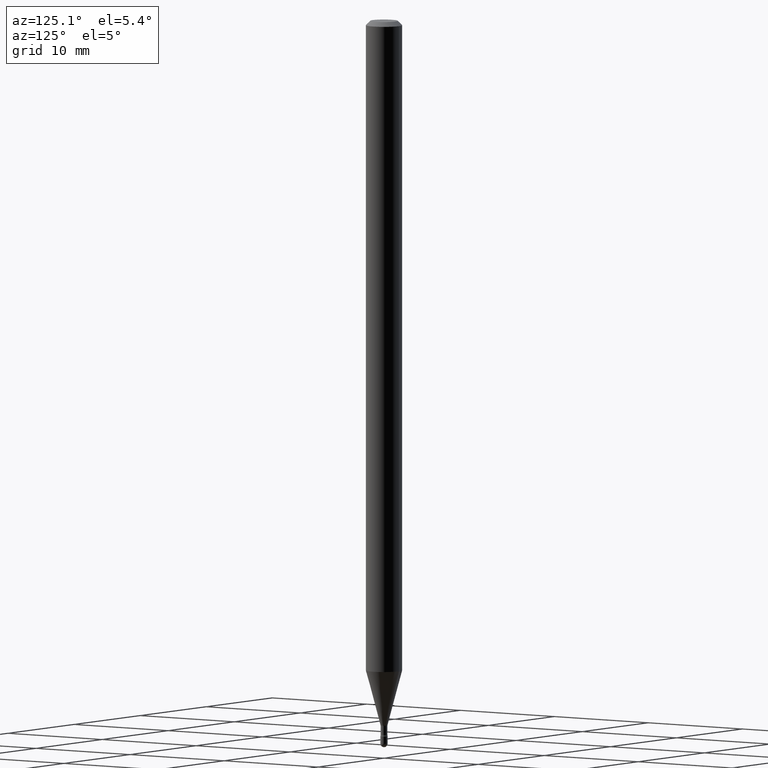
[diagram: clean part render]
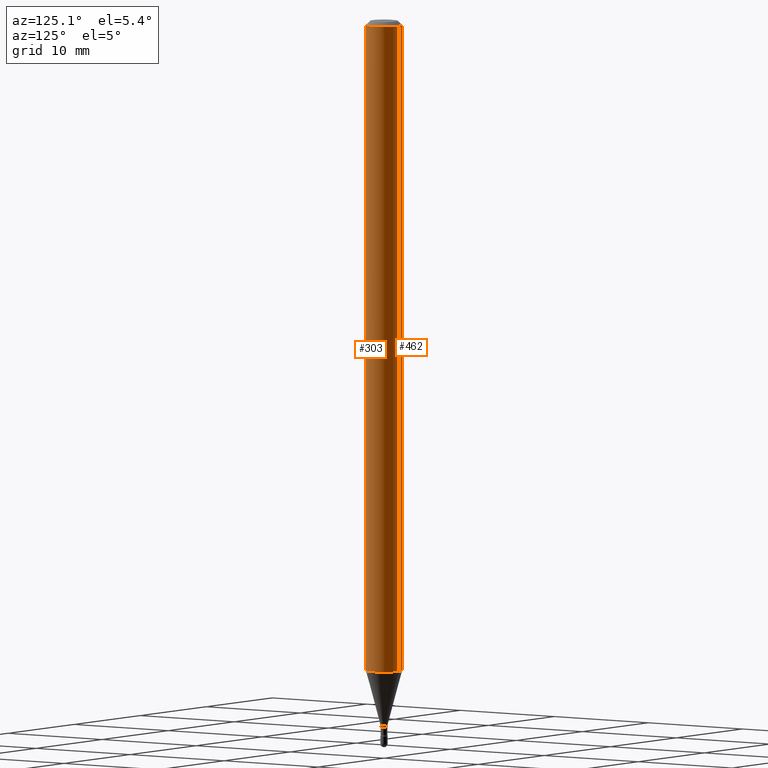
[diagram: same view with one multi-face feature highlighted, each face labeled with its STEP entity id]
A machine part, auxiliary view. The highlighted faces form ONE feature: a constant-radius fillet chain: 2 tangent blend faces with common blend radius 1.5875 mm. The faces share edges in the B-rep.
Their STEP definitions:
[1] entity #303 (Cylinder):
#27 = DIRECTION ( 'NONE',  ( -2.445502615023692233E-29, 3.491432922662054397E-15, 1.000000000000000000 ) ) ;
#52 = LINE ( 'NONE', #385, #106 ) ;
#58 = CARTESIAN_POINT ( 'NONE',  ( -4.364351673553912750E-16, -0.06250000000000005551, -0.01499999999999986587 ) ) ;
#78 = CARTESIAN_POINT ( 'NONE',  ( -4.364351673553369422E-16, -0.06250000000000779932, -2.235598421515879952 ) ) ;
#95 = ORIENTED_EDGE ( 'NONE', *, *, #550, .T. ) ;
#102 = LINE ( 'NONE', #386, #301 ) ;
#106 = VECTOR ( 'NONE', #382, 39.37007874015748143 ) ;
#107 = CIRCLE ( 'NONE', #233, 0.06250000000000000000 ) ;
#111 = DIRECTION ( 'NONE',  ( -6.982962677686265922E-15, -1.000000000000000000, 3.483106191921935554E-15 ) ) ;
#133 = EDGE_CURVE ( 'NONE', #327, #175, #102, .T. ) ;
#168 = AXIS2_PLACEMENT_3D ( 'NONE', #297, #420, #425 ) ;
#175 = VERTEX_POINT ( 'NONE', #58 ) ;
#212 = VERTEX_POINT ( 'NONE', #445 ) ;
#222 = CARTESIAN_POINT ( 'NONE',  ( 4.440892098501170476E-16, 0.06249999999999218681, -2.235598421515880396 ) ) ;
#233 = AXIS2_PLACEMENT_3D ( 'NONE', #288, #411, #111 ) ;
#244 = AXIS2_PLACEMENT_3D ( 'NONE', #455, #27, #283 ) ;
#265 = DIRECTION ( 'NONE',  ( -2.445502615023692233E-29, 3.491432922662054792E-15, 1.000000000000000000 ) ) ;
#283 = DIRECTION ( 'NONE',  ( -6.982962677686265922E-15, -1.000000000000000000, 3.491432922662053608E-15 ) ) ;
#288 = CARTESIAN_POINT ( 'NONE',  ( 3.668253922535558756E-31, -5.237149383993110783E-17, -0.01500000000000008271 ) ) ;
#297 = CARTESIAN_POINT ( 'NONE',  ( 5.467161785959923707E-29, -7.805441930731864648E-15, -2.235598421515879952 ) ) ;
#301 = VECTOR ( 'NONE', #265, 39.37007874015748143 ) ;
#303 = ADVANCED_FACE ( 'NONE', ( #457 ), #328, .T. ) ;
#327 = VERTEX_POINT ( 'NONE', #78 ) ;
#328 = CYLINDRICAL_SURFACE ( 'NONE', #244, 0.06250000000000000000 ) ;
#329 = CIRCLE ( 'NONE', #168, 0.06250000000000000000 ) ;
#371 = ORIENTED_EDGE ( 'NONE', *, *, #435, .T. ) ;
#382 = DIRECTION ( 'NONE',  ( -2.445502615023692233E-29, 3.491432922662054792E-15, 1.000000000000000000 ) ) ;
#385 = CARTESIAN_POINT ( 'NONE',  ( 4.440892098500625669E-16, 0.06250000000000000000, 2.598588412248676881E-16 ) ) ;
#386 = CARTESIAN_POINT ( 'NONE',  ( -4.364351673553916201E-16, -0.06250000000000000000, 6.962879565576243891E-16 ) ) ;
#387 = EDGE_CURVE ( 'NONE', #175, #212, #107, .T. ) ;
#411 = DIRECTION ( 'NONE',  ( -2.445502615023692233E-29, 3.491432922662054397E-15, 1.000000000000000000 ) ) ;
#420 = DIRECTION ( 'NONE',  ( -2.445502615023692233E-29, 3.491432922662054397E-15, 1.000000000000000000 ) ) ;
#421 = ORIENTED_EDGE ( 'NONE', *, *, #387, .F. ) ;
#425 = DIRECTION ( 'NONE',  ( -6.982962677686265922E-15, -1.000000000000000000, 4.370956789862821150E-15 ) ) ;
#435 = EDGE_CURVE ( 'NONE', #327, #465, #329, .T. ) ;
#445 = CARTESIAN_POINT ( 'NONE',  ( 4.440892098501175406E-16, 0.06249999999999995143, -0.01500000000000030129 ) ) ;
#455 = CARTESIAN_POINT ( 'NONE',  ( -1.169113584055446105E-44, 1.669184350826100908E-30, 4.780733988912460139E-16 ) ) ;
#457 = FACE_OUTER_BOUND ( 'NONE', #535, .T. ) ;
#465 = VERTEX_POINT ( 'NONE', #222 ) ;
#493 = ORIENTED_EDGE ( 'NONE', *, *, #133, .F. ) ;
#535 = EDGE_LOOP ( 'NONE', ( #371, #95, #421, #493 ) ) ;
#550 = EDGE_CURVE ( 'NONE', #465, #212, #52, .T. ) ;
[2] entity #462 (Cylinder):
#2 = EDGE_CURVE ( 'NONE', #465, #327, #538, .T. ) ;
#11 = CARTESIAN_POINT ( 'NONE',  ( 3.668253922535558756E-31, -5.237149383993110783E-17, -0.01500000000000008271 ) ) ;
#39 = ORIENTED_EDGE ( 'NONE', *, *, #133, .T. ) ;
#52 = LINE ( 'NONE', #385, #106 ) ;
#58 = CARTESIAN_POINT ( 'NONE',  ( -4.364351673553912750E-16, -0.06250000000000005551, -0.01499999999999986587 ) ) ;
#63 = ORIENTED_EDGE ( 'NONE', *, *, #100, .F. ) ;
#75 = AXIS2_PLACEMENT_3D ( 'NONE', #11, #349, #105 ) ;
#78 = CARTESIAN_POINT ( 'NONE',  ( -4.364351673553369422E-16, -0.06250000000000779932, -2.235598421515879952 ) ) ;
#81 = ORIENTED_EDGE ( 'NONE', *, *, #550, .F. ) ;
#89 = CIRCLE ( 'NONE', #75, 0.06250000000000000000 ) ;
#94 = FACE_OUTER_BOUND ( 'NONE', #318, .T. ) ;
#100 = EDGE_CURVE ( 'NONE', #212, #175, #89, .T. ) ;
#102 = LINE ( 'NONE', #386, #301 ) ;
#105 = DIRECTION ( 'NONE',  ( -6.982962677686265922E-15, -1.000000000000000000, 3.483106191921935554E-15 ) ) ;
#106 = VECTOR ( 'NONE', #382, 39.37007874015748143 ) ;
#128 = DIRECTION ( 'NONE',  ( -6.982962677686265922E-15, -1.000000000000000000, 3.491432922662053608E-15 ) ) ;
#133 = EDGE_CURVE ( 'NONE', #327, #175, #102, .T. ) ;
#173 = CARTESIAN_POINT ( 'NONE',  ( 5.467161785959923707E-29, -7.805441930731864648E-15, -2.235598421515879952 ) ) ;
#175 = VERTEX_POINT ( 'NONE', #58 ) ;
#182 = AXIS2_PLACEMENT_3D ( 'NONE', #466, #220, #128 ) ;
#212 = VERTEX_POINT ( 'NONE', #445 ) ;
#220 = DIRECTION ( 'NONE',  ( -2.445502615023692233E-29, 3.491432922662054397E-15, 1.000000000000000000 ) ) ;
#222 = CARTESIAN_POINT ( 'NONE',  ( 4.440892098501170476E-16, 0.06249999999999218681, -2.235598421515880396 ) ) ;
#265 = DIRECTION ( 'NONE',  ( -2.445502615023692233E-29, 3.491432922662054792E-15, 1.000000000000000000 ) ) ;
#291 = AXIS2_PLACEMENT_3D ( 'NONE', #173, #512, #341 ) ;
#301 = VECTOR ( 'NONE', #265, 39.37007874015748143 ) ;
#304 = CYLINDRICAL_SURFACE ( 'NONE', #182, 0.06250000000000000000 ) ;
#318 = EDGE_LOOP ( 'NONE', ( #81, #543, #39, #63 ) ) ;
#327 = VERTEX_POINT ( 'NONE', #78 ) ;
#341 = DIRECTION ( 'NONE',  ( -6.982962677686265922E-15, -1.000000000000000000, 4.370956789862821150E-15 ) ) ;
#349 = DIRECTION ( 'NONE',  ( -2.445502615023692233E-29, 3.491432922662054397E-15, 1.000000000000000000 ) ) ;
#382 = DIRECTION ( 'NONE',  ( -2.445502615023692233E-29, 3.491432922662054792E-15, 1.000000000000000000 ) ) ;
#385 = CARTESIAN_POINT ( 'NONE',  ( 4.440892098500625669E-16, 0.06250000000000000000, 2.598588412248676881E-16 ) ) ;
#386 = CARTESIAN_POINT ( 'NONE',  ( -4.364351673553916201E-16, -0.06250000000000000000, 6.962879565576243891E-16 ) ) ;
#445 = CARTESIAN_POINT ( 'NONE',  ( 4.440892098501175406E-16, 0.06249999999999995143, -0.01500000000000030129 ) ) ;
#462 = ADVANCED_FACE ( 'NONE', ( #94 ), #304, .T. ) ;
#465 = VERTEX_POINT ( 'NONE', #222 ) ;
#466 = CARTESIAN_POINT ( 'NONE',  ( -1.169113584055446105E-44, 1.669184350826100908E-30, 4.780733988912460139E-16 ) ) ;
#512 = DIRECTION ( 'NONE',  ( -2.445502615023692233E-29, 3.491432922662054397E-15, 1.000000000000000000 ) ) ;
#538 = CIRCLE ( 'NONE', #291, 0.06250000000000000000 ) ;
#543 = ORIENTED_EDGE ( 'NONE', *, *, #2, .T. ) ;
#550 = EDGE_CURVE ( 'NONE', #465, #212, #52, .T. ) ;